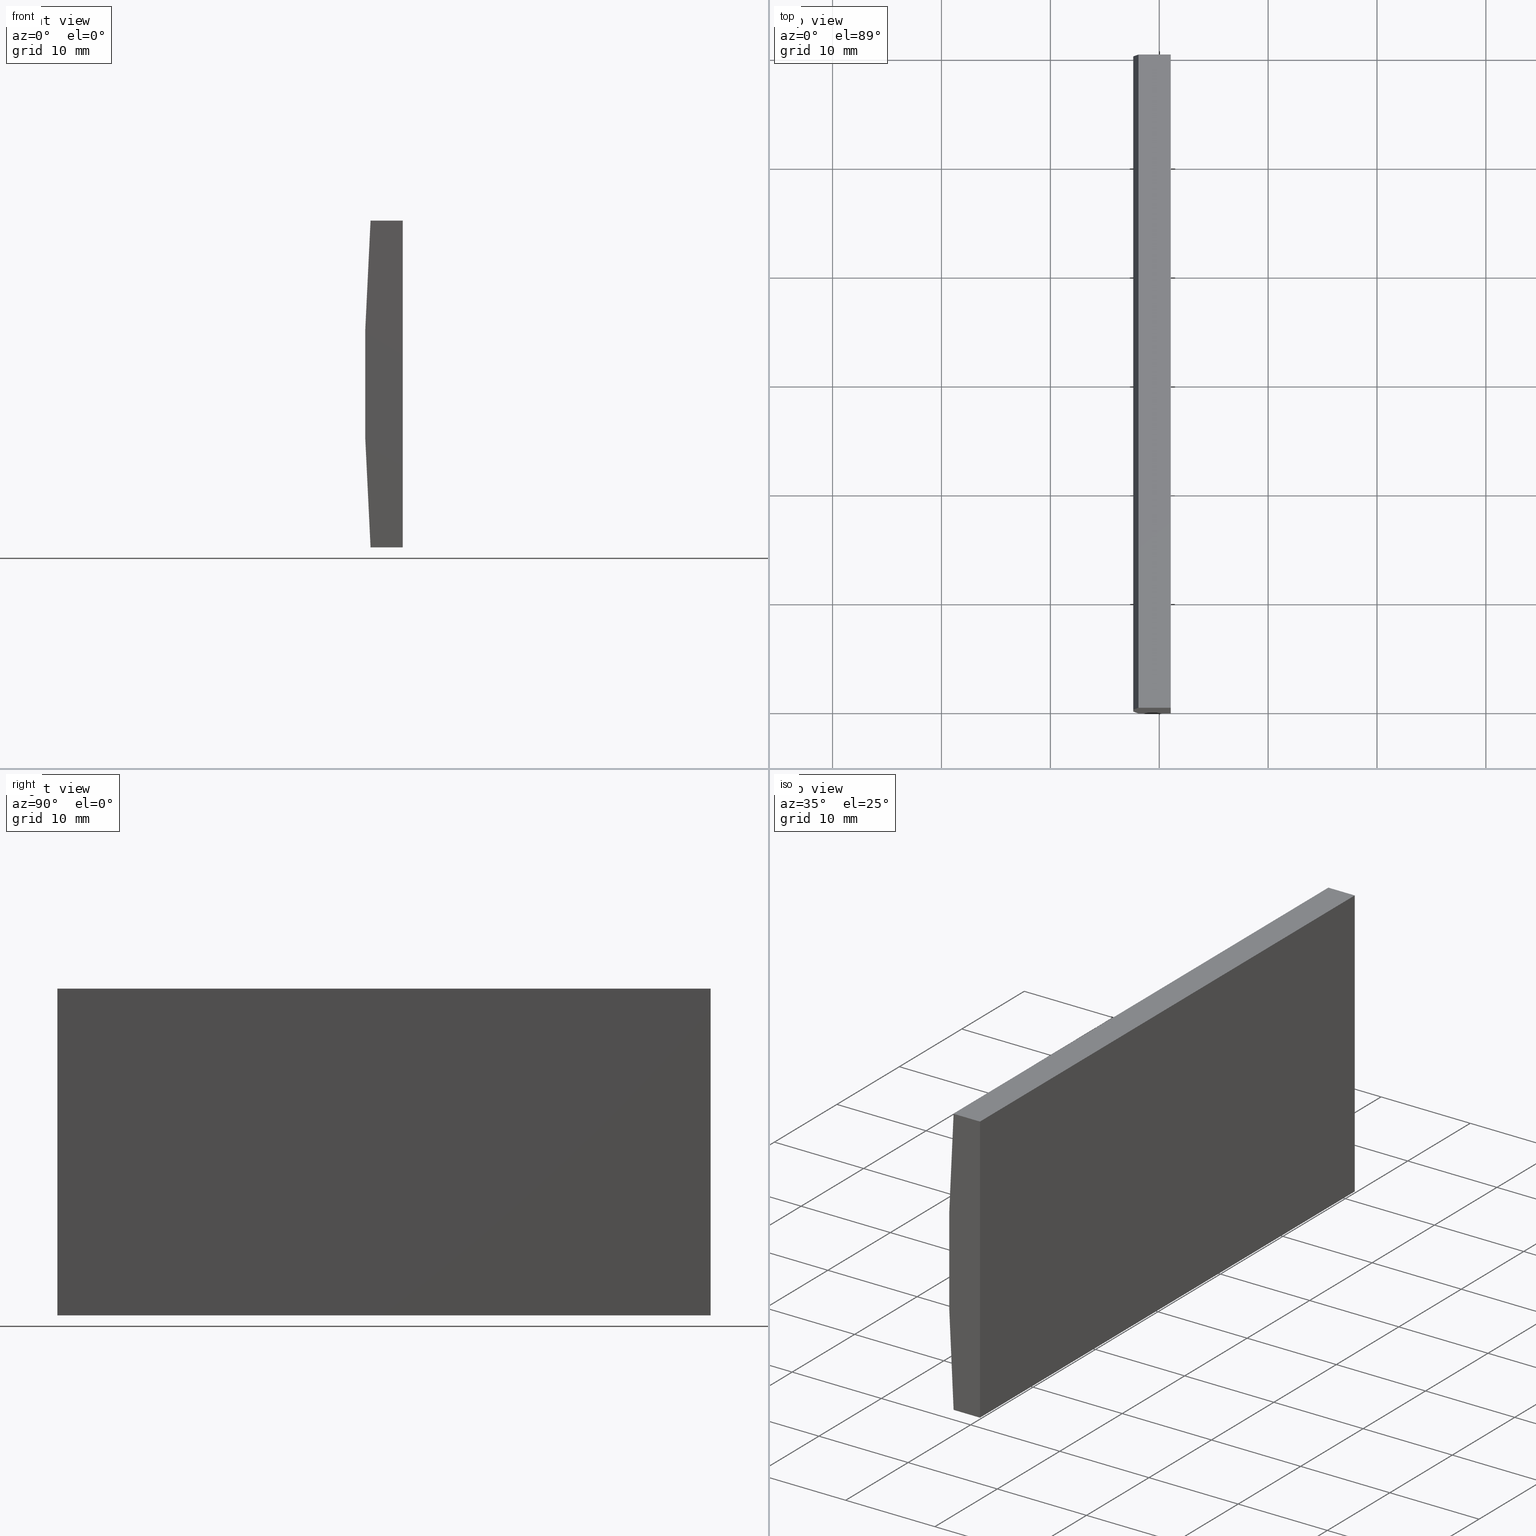
[diagram: canonical four-view strip — front | top / right | iso, engineering-drawing reading convention]
A machine part, canonical four-view strip (front | top / right | iso — engineering-drawing reading convention). The complete STEP part file that produces these views, byte-faithful:
ISO-10303-21;
HEADER;
FILE_DESCRIPTION (( 'STEP AP214' ),
    '1' );
FILE_NAME ('155063.STEP',
    '2019-06-18T08:25:49',
    ( 'user' ),
    ( '΢���й�' ),
    'SwSTEP 2.0',
    'SolidWorks 2016',
    '' );
FILE_SCHEMA (( 'AUTOMOTIVE_DESIGN' ));
ENDSEC;

DATA;
#1 = CARTESIAN_POINT ( 'NONE',  ( -201.9000743854763000, 60.00000000000000000, 15.00000000000000000 ) ) ;
#2 = LINE ( 'NONE', #160, #138 ) ;
#3 = ORIENTED_EDGE ( 'NONE', *, *, #60, .T. ) ;
#4 = PRODUCT_CONTEXT ( 'NONE', #146, 'mechanical' ) ;
#5 = CIRCLE ( 'NONE', #136, 206.8000000000000400 ) ;
#6 = PRESENTATION_LAYER_ASSIGNMENT (  '', '', ( #112 ) ) ;
#7 = ORIENTED_EDGE ( 'NONE', *, *, #151, .F. ) ;
#8 = ORIENTED_EDGE ( 'NONE', *, *, #197, .T. ) ;
#9 = CARTESIAN_POINT ( 'NONE',  ( -198.9447956651487500, 0.0000000000000000000, 15.00000000000000000 ) ) ;
#10 = EDGE_LOOP ( 'NONE', ( #3, #35, #145, #193 ) ) ;
#11 = DIRECTION ( 'NONE',  ( 0.0000000000000000000, 0.0000000000000000000, -1.000000000000000000 ) ) ;
#12 = VECTOR ( 'NONE', #93, 1000.000000000000000 ) ;
#13 = PLANE ( 'NONE',  #204 ) ;
#14 = LINE ( 'NONE', #195, #72 ) ;
#15 = SURFACE_STYLE_USAGE ( .BOTH. , #61 ) ;
#16 = DIRECTION ( 'NONE',  ( 0.0000000000000000000, 0.0000000000000000000, 1.000000000000000000 ) ) ;
#17 = CARTESIAN_POINT ( 'NONE',  ( 4.355204334851265500, 60.00000000000000000, 4.286263797015675000E-017 ) ) ;
#18 = PRODUCT_DEFINITION ( 'δ֪', '', #49, #149 ) ;
#19 = CARTESIAN_POINT ( 'NONE',  ( -201.9000743854763000, 60.00000000000000000, 15.00000000000000000 ) ) ;
#20 = DIRECTION ( 'NONE',  ( 0.0000000000000000000, 0.0000000000000000000, 1.000000000000000000 ) ) ;
#21 = ORIENTED_EDGE ( 'NONE', *, *, #84, .F. ) ;
#22 = VERTEX_POINT ( 'NONE', #185 ) ;
#23 = ORIENTED_EDGE ( 'NONE', *, *, #179, .T. ) ;
#24 = PLANE ( 'NONE',  #34 ) ;
#25 = COLOUR_RGB ( '',1.000000000000000000, 1.000000000000000000, 1.000000000000000000 ) ;
#26 =( GEOMETRIC_REPRESENTATION_CONTEXT ( 3 ) GLOBAL_UNCERTAINTY_ASSIGNED_CONTEXT ( ( #127 ) ) GLOBAL_UNIT_ASSIGNED_CONTEXT ( ( #64, #45, #41 ) ) REPRESENTATION_CONTEXT ( 'NONE', 'WORKASPACE' ) );
#27 = CARTESIAN_POINT ( 'NONE',  ( -201.9000743854763000, 60.00000000000000000, -15.00000000000000000 ) ) ;
#28 = VECTOR ( 'NONE', #182, 1000.000000000000000 ) ;
#29 = CARTESIAN_POINT ( 'NONE',  ( -198.9447956651487500, 60.00000000000000000, -15.00000000000000400 ) ) ;
#30 = ADVANCED_FACE ( 'NONE', ( #128 ), #13, .F. ) ;
#31 = ORIENTED_EDGE ( 'NONE', *, *, #52, .F. ) ;
#32 = VECTOR ( 'NONE', #47, 1000.000000000000000 ) ;
#33 = DIRECTION ( 'NONE',  ( 0.0000000000000000000, 1.000000000000000000, 0.0000000000000000000 ) ) ;
#34 = AXIS2_PLACEMENT_3D ( 'NONE', #17, #110, #147 ) ;
#35 = ORIENTED_EDGE ( 'NONE', *, *, #62, .F. ) ;
#36 = DIRECTION ( 'NONE',  ( -0.0000000000000000000, -0.0000000000000000000, -1.000000000000000000 ) ) ;
#37 = FACE_OUTER_BOUND ( 'NONE', #10, .T. ) ;
#38 = DIRECTION ( 'NONE',  ( 0.0000000000000000000, 1.000000000000000000, 0.0000000000000000000 ) ) ;
#39 = DIRECTION ( 'NONE',  ( 1.173982991211425500E-015, -0.0000000000000000000, 1.000000000000000000 ) ) ;
#40 = ORIENTED_EDGE ( 'NONE', *, *, #98, .T. ) ;
#41 =( NAMED_UNIT ( * ) SI_UNIT ( $, .STERADIAN. ) SOLID_ANGLE_UNIT ( ) );
#42 = ORIENTED_EDGE ( 'NONE', *, *, #201, .F. ) ;
#43 =( NAMED_UNIT ( * ) SI_UNIT ( $, .STERADIAN. ) SOLID_ANGLE_UNIT ( ) );
#44 = MANIFOLD_SOLID_BREP ( '͹̨-����1', #53 ) ;
#45 =( NAMED_UNIT ( * ) PLANE_ANGLE_UNIT ( ) SI_UNIT ( $, .RADIAN. ) );
#46 = SURFACE_SIDE_STYLE ('',( #194 ) ) ;
#47 = DIRECTION ( 'NONE',  ( -0.0000000000000000000, -1.000000000000000000, -0.0000000000000000000 ) ) ;
#48 = ADVANCED_BREP_SHAPE_REPRESENTATION ( '155063', ( #44, #116 ), #55 ) ;
#49 = PRODUCT_DEFINITION_FORMATION_WITH_SPECIFIED_SOURCE ( '�κ�', '', #119, .NOT_KNOWN. ) ;
#50 = CARTESIAN_POINT ( 'NONE',  ( -198.9447956651487500, 60.00000000000000000, -15.00000000000000400 ) ) ;
#51 = PLANE ( 'NONE',  #187 ) ;
#52 = EDGE_CURVE ( 'NONE', #22, #163, #173, .T. ) ;
#53 = CLOSED_SHELL ( 'NONE', ( #78, #30, #91, #180, #148, #196 ) ) ;
#54 = DIRECTION ( 'NONE',  ( 1.000000000000000000, 0.0000000000000000000, 0.0000000000000000000 ) ) ;
#55 =( GEOMETRIC_REPRESENTATION_CONTEXT ( 3 ) GLOBAL_UNCERTAINTY_ASSIGNED_CONTEXT ( ( #113 ) ) GLOBAL_UNIT_ASSIGNED_CONTEXT ( ( #171, #165, #43 ) ) REPRESENTATION_CONTEXT ( 'NONE', 'WORKASPACE' ) );
#56 = VERTEX_POINT ( 'NONE', #157 ) ;
#57 = MECHANICAL_DESIGN_GEOMETRIC_PRESENTATION_REPRESENTATION (  '', ( #112 ), #76 ) ;
#58 = EDGE_CURVE ( 'NONE', #97, #139, #92, .T. ) ;
#59 = COLOUR_RGB ( '',1.000000000000000000, 1.000000000000000000, 1.000000000000000000 ) ;
#60 = EDGE_CURVE ( 'NONE', #118, #56, #5, .T. ) ;
#61 = SURFACE_SIDE_STYLE ('',( #121 ) ) ;
#62 = EDGE_CURVE ( 'NONE', #97, #56, #69, .T. ) ;
#63 = LINE ( 'NONE', #129, #90 ) ;
#64 =( LENGTH_UNIT ( ) NAMED_UNIT ( * ) SI_UNIT ( .MILLI., .METRE. ) );
#65 = DIRECTION ( 'NONE',  ( -0.0000000000000000000, -1.000000000000000000, -0.0000000000000000000 ) ) ;
#66 = DIRECTION ( 'NONE',  ( -1.000000000000000000, 0.0000000000000000000, 0.0000000000000000000 ) ) ;
#67 = DIRECTION ( 'NONE',  ( 0.0000000000000000000, 0.0000000000000000000, 1.000000000000000000 ) ) ;
#68 = CARTESIAN_POINT ( 'NONE',  ( 4.355204334851265500, 0.0000000000000000000, 4.286263797015675000E-017 ) ) ;
#69 = LINE ( 'NONE', #94, #28 ) ;
#70 = FILL_AREA_STYLE ('',( #170 ) ) ;
#71 =( LENGTH_UNIT ( ) NAMED_UNIT ( * ) SI_UNIT ( .MILLI., .METRE. ) );
#72 = VECTOR ( 'NONE', #126, 1000.000000000000000 ) ;
#73 = VECTOR ( 'NONE', #134, 1000.000000000000000 ) ;
#74 = APPLICATION_PROTOCOL_DEFINITION ( 'draft international standard', 'automotive_design', 1998, #146 ) ;
#75 = CARTESIAN_POINT ( 'NONE',  ( -201.9000743854763000, 0.0000000000000000000, -15.00000000000000000 ) ) ;
#76 =( GEOMETRIC_REPRESENTATION_CONTEXT ( 3 ) GLOBAL_UNCERTAINTY_ASSIGNED_CONTEXT ( ( #144 ) ) GLOBAL_UNIT_ASSIGNED_CONTEXT ( ( #71, #115, #109 ) ) REPRESENTATION_CONTEXT ( 'NONE', 'WORKASPACE' ) );
#77 = ORIENTED_EDGE ( 'NONE', *, *, #58, .F. ) ;
#78 = ADVANCED_FACE ( 'NONE', ( #37 ), #108, .T. ) ;
#79 = DIRECTION ( 'NONE',  ( -0.0000000000000000000, -1.000000000000000000, -0.0000000000000000000 ) ) ;
#80 = EDGE_LOOP ( 'NONE', ( #192, #21, #106, #155 ) ) ;
#81 = CARTESIAN_POINT ( 'NONE',  ( -198.9447956651487500, 60.00000000000000000, 15.00000000000000000 ) ) ;
#82 = FILL_AREA_STYLE_COLOUR ( '', #59 ) ;
#83 = AXIS2_PLACEMENT_3D ( 'NONE', #137, #33, #67 ) ;
#84 = EDGE_CURVE ( 'NONE', #163, #118, #63, .T. ) ;
#85 = ORIENTED_EDGE ( 'NONE', *, *, #95, .T. ) ;
#86 = CARTESIAN_POINT ( 'NONE',  ( -198.9447956651487500, 0.0000000000000000000, -15.00000000000000400 ) ) ;
#87 = CARTESIAN_POINT ( 'NONE',  ( -198.9447956651487500, 60.00000000000000000, -15.00000000000000400 ) ) ;
#88 = AXIS2_PLACEMENT_3D ( 'NONE', #68, #191, #130 ) ;
#89 = VERTEX_POINT ( 'NONE', #9 ) ;
#90 = VECTOR ( 'NONE', #164, 1000.000000000000000 ) ;
#91 = ADVANCED_FACE ( 'NONE', ( #132 ), #189, .F. ) ;
#92 = LINE ( 'NONE', #188, #141 ) ;
#93 = DIRECTION ( 'NONE',  ( -0.0000000000000000000, -0.0000000000000000000, -1.000000000000000000 ) ) ;
#94 = CARTESIAN_POINT ( 'NONE',  ( -201.9000743854763000, 60.00000000000000000, 15.00000000000000000 ) ) ;
#95 = EDGE_CURVE ( 'NONE', #139, #22, #198, .T. ) ;
#96 = ORIENTED_EDGE ( 'NONE', *, *, #58, .T. ) ;
#97 = VERTEX_POINT ( 'NONE', #1 ) ;
#98 = EDGE_CURVE ( 'NONE', #89, #163, #203, .T. ) ;
#99 = CARTESIAN_POINT ( 'NONE',  ( -201.9000743854763000, 60.00000000000000000, -15.00000000000000000 ) ) ;
#100 = EDGE_LOOP ( 'NONE', ( #101, #96, #85, #161 ) ) ;
#101 = ORIENTED_EDGE ( 'NONE', *, *, #158, .T. ) ;
#102 = CARTESIAN_POINT ( 'NONE',  ( -198.9447956651487500, 0.0000000000000000000, -15.00000000000000400 ) ) ;
#103 = LINE ( 'NONE', #200, #142 ) ;
#104 = PRESENTATION_STYLE_ASSIGNMENT (( #176 ) ) ;
#105 = FACE_OUTER_BOUND ( 'NONE', #100, .T. ) ;
#106 = ORIENTED_EDGE ( 'NONE', *, *, #98, .F. ) ;
#107 = DIRECTION ( 'NONE',  ( 1.000000000000000000, 0.0000000000000000000, 0.0000000000000000000 ) ) ;
#108 = CYLINDRICAL_SURFACE ( 'NONE', #143, 206.8000000000000400 ) ;
#109 =( NAMED_UNIT ( * ) SI_UNIT ( $, .STERADIAN. ) SOLID_ANGLE_UNIT ( ) );
#110 = DIRECTION ( 'NONE',  ( 0.0000000000000000000, 1.000000000000000000, 0.0000000000000000000 ) ) ;
#111 = FACE_OUTER_BOUND ( 'NONE', #80, .T. ) ;
#112 = STYLED_ITEM ( 'NONE', ( #152 ), #48 ) ;
#113 = UNCERTAINTY_MEASURE_WITH_UNIT (LENGTH_MEASURE( 1.000000000000000100E-005 ), #171, 'distance_accuracy_value', 'NONE');
#114 = ORIENTED_EDGE ( 'NONE', *, *, #84, .T. ) ;
#115 =( NAMED_UNIT ( * ) PLANE_ANGLE_UNIT ( ) SI_UNIT ( $, .RADIAN. ) );
#116 = AXIS2_PLACEMENT_3D ( 'NONE', #190, #16, #107 ) ;
#117 = ORIENTED_EDGE ( 'NONE', *, *, #52, .T. ) ;
#118 = VERTEX_POINT ( 'NONE', #75 ) ;
#119 = PRODUCT ( '155063', '155063', '', ( #4 ) ) ;
#120 = PRODUCT_RELATED_PRODUCT_CATEGORY ( 'part', '', ( #119 ) ) ;
#121 = SURFACE_STYLE_FILL_AREA ( #70 ) ;
#122 = CARTESIAN_POINT ( 'NONE',  ( -201.9000743854763000, 0.0000000000000000000, 15.00000000000000000 ) ) ;
#123 = LINE ( 'NONE', #122, #73 ) ;
#124 = STYLED_ITEM ( 'NONE', ( #104 ), #44 ) ;
#125 = PLANE ( 'NONE',  #88 ) ;
#126 = DIRECTION ( 'NONE',  ( -0.0000000000000000000, -1.000000000000000000, -0.0000000000000000000 ) ) ;
#127 = UNCERTAINTY_MEASURE_WITH_UNIT (LENGTH_MEASURE( 1.000000000000000100E-005 ), #64, 'distance_accuracy_value', 'NONE');
#128 = FACE_OUTER_BOUND ( 'NONE', #153, .T. ) ;
#129 = CARTESIAN_POINT ( 'NONE',  ( -201.9000743854763000, 0.0000000000000000000, -15.00000000000000000 ) ) ;
#130 = DIRECTION ( 'NONE',  ( 0.0000000000000000000, -0.0000000000000000000, 1.000000000000000000 ) ) ;
#131 = FACE_OUTER_BOUND ( 'NONE', #159, .T. ) ;
#132 = FACE_OUTER_BOUND ( 'NONE', #156, .T. ) ;
#133 = VERTEX_POINT ( 'NONE', #27 ) ;
#134 = DIRECTION ( 'NONE',  ( 1.000000000000000000, 0.0000000000000000000, 0.0000000000000000000 ) ) ;
#135 = FILL_AREA_STYLE ('',( #82 ) ) ;
#136 = AXIS2_PLACEMENT_3D ( 'NONE', #177, #38, #181 ) ;
#137 = CARTESIAN_POINT ( 'NONE',  ( 4.355204334851265500, 60.00000000000000000, 4.286263797015675000E-017 ) ) ;
#138 = VECTOR ( 'NONE', #79, 1000.000000000000000 ) ;
#139 = VERTEX_POINT ( 'NONE', #81 ) ;
#140 = ORIENTED_EDGE ( 'NONE', *, *, #62, .T. ) ;
#141 = VECTOR ( 'NONE', #54, 1000.000000000000000 ) ;
#142 = VECTOR ( 'NONE', #150, 1000.000000000000000 ) ;
#143 = AXIS2_PLACEMENT_3D ( 'NONE', #166, #65, #11 ) ;
#144 = UNCERTAINTY_MEASURE_WITH_UNIT (LENGTH_MEASURE( 1.000000000000000100E-005 ), #71, 'distance_accuracy_value', 'NONE');
#145 = ORIENTED_EDGE ( 'NONE', *, *, #158, .F. ) ;
#146 = APPLICATION_CONTEXT ( 'automotive_design' ) ;
#147 = DIRECTION ( 'NONE',  ( 0.0000000000000000000, -0.0000000000000000000, 1.000000000000000000 ) ) ;
#148 = ADVANCED_FACE ( 'NONE', ( #105 ), #24, .T. ) ;
#149 = PRODUCT_DEFINITION_CONTEXT ( 'detailed design', #202, 'design' ) ;
#150 = DIRECTION ( 'NONE',  ( -1.000000000000000000, -0.0000000000000000000, 1.173982991211425300E-015 ) ) ;
#151 = EDGE_CURVE ( 'NONE', #133, #118, #14, .T. ) ;
#152 = PRESENTATION_STYLE_ASSIGNMENT (( #15 ) ) ;
#153 = EDGE_LOOP ( 'NONE', ( #23, #175, #77, #140 ) ) ;
#154 = PRESENTATION_LAYER_ASSIGNMENT (  '', '', ( #124 ) ) ;
#155 = ORIENTED_EDGE ( 'NONE', *, *, #179, .F. ) ;
#156 = EDGE_LOOP ( 'NONE', ( #40, #31, #178, #8 ) ) ;
#157 = CARTESIAN_POINT ( 'NONE',  ( -201.9000743854763000, 0.0000000000000000000, 15.00000000000000000 ) ) ;
#158 = EDGE_CURVE ( 'NONE', #133, #97, #183, .T. ) ;
#159 = EDGE_LOOP ( 'NONE', ( #114, #7, #42, #117 ) ) ;
#160 = CARTESIAN_POINT ( 'NONE',  ( -198.9447956651487500, 60.00000000000000000, 15.00000000000000000 ) ) ;
#161 = ORIENTED_EDGE ( 'NONE', *, *, #201, .T. ) ;
#162 = DIRECTION ( 'NONE',  ( -1.000000000000000000, 0.0000000000000000000, -0.0000000000000000000 ) ) ;
#163 = VERTEX_POINT ( 'NONE', #86 ) ;
#164 = DIRECTION ( 'NONE',  ( -1.000000000000000000, -0.0000000000000000000, 1.173982991211425300E-015 ) ) ;
#165 =( NAMED_UNIT ( * ) PLANE_ANGLE_UNIT ( ) SI_UNIT ( $, .RADIAN. ) );
#166 = CARTESIAN_POINT ( 'NONE',  ( 4.355204334851265500, 60.00000000000000000, 4.286263797015675000E-017 ) ) ;
#167 = VECTOR ( 'NONE', #36, 1000.000000000000000 ) ;
#168 = SHAPE_DEFINITION_REPRESENTATION ( #184, #48 ) ;
#169 = AXIS2_PLACEMENT_3D ( 'NONE', #87, #66, #20 ) ;
#170 = FILL_AREA_STYLE_COLOUR ( '', #25 ) ;
#171 =( LENGTH_UNIT ( ) NAMED_UNIT ( * ) SI_UNIT ( .MILLI., .METRE. ) );
#172 = MECHANICAL_DESIGN_GEOMETRIC_PRESENTATION_REPRESENTATION (  '', ( #124 ), #26 ) ;
#173 = LINE ( 'NONE', #50, #32 ) ;
#174 = APPLICATION_PROTOCOL_DEFINITION ( 'draft international standard', 'automotive_design', 1998, #202 ) ;
#175 = ORIENTED_EDGE ( 'NONE', *, *, #197, .F. ) ;
#176 = SURFACE_STYLE_USAGE ( .BOTH. , #46 ) ;
#177 = CARTESIAN_POINT ( 'NONE',  ( 4.355204334851265500, 0.0000000000000000000, 4.286263797015675000E-017 ) ) ;
#178 = ORIENTED_EDGE ( 'NONE', *, *, #95, .F. ) ;
#179 = EDGE_CURVE ( 'NONE', #56, #89, #123, .T. ) ;
#180 = ADVANCED_FACE ( 'NONE', ( #131 ), #51, .F. ) ;
#181 = DIRECTION ( 'NONE',  ( 0.0000000000000000000, 0.0000000000000000000, 1.000000000000000000 ) ) ;
#182 = DIRECTION ( 'NONE',  ( -0.0000000000000000000, -1.000000000000000000, -0.0000000000000000000 ) ) ;
#183 = CIRCLE ( 'NONE', #83, 206.8000000000000400 ) ;
#184 = PRODUCT_DEFINITION_SHAPE ( 'NONE', 'NONE',  #18 ) ;
#185 = CARTESIAN_POINT ( 'NONE',  ( -198.9447956651487500, 60.00000000000000000, -15.00000000000000400 ) ) ;
#186 = DIRECTION ( 'NONE',  ( 1.000000000000000000, 0.0000000000000000000, -1.173982991211425500E-015 ) ) ;
#187 = AXIS2_PLACEMENT_3D ( 'NONE', #99, #39, #186 ) ;
#188 = CARTESIAN_POINT ( 'NONE',  ( -201.9000743854763000, 60.00000000000000000, 15.00000000000000000 ) ) ;
#189 = PLANE ( 'NONE',  #169 ) ;
#190 = CARTESIAN_POINT ( 'NONE',  ( 0.0000000000000000000, 0.0000000000000000000, 0.0000000000000000000 ) ) ;
#191 = DIRECTION ( 'NONE',  ( 0.0000000000000000000, 1.000000000000000000, 0.0000000000000000000 ) ) ;
#192 = ORIENTED_EDGE ( 'NONE', *, *, #60, .F. ) ;
#193 = ORIENTED_EDGE ( 'NONE', *, *, #151, .T. ) ;
#194 = SURFACE_STYLE_FILL_AREA ( #135 ) ;
#195 = CARTESIAN_POINT ( 'NONE',  ( -201.9000743854763000, 60.00000000000000000, -15.00000000000000000 ) ) ;
#196 = ADVANCED_FACE ( 'NONE', ( #111 ), #125, .F. ) ;
#197 = EDGE_CURVE ( 'NONE', #139, #89, #2, .T. ) ;
#198 = LINE ( 'NONE', #29, #167 ) ;
#199 = DIRECTION ( 'NONE',  ( 0.0000000000000000000, 0.0000000000000000000, -1.000000000000000000 ) ) ;
#200 = CARTESIAN_POINT ( 'NONE',  ( -201.9000743854763000, 60.00000000000000000, -15.00000000000000000 ) ) ;
#201 = EDGE_CURVE ( 'NONE', #22, #133, #103, .T. ) ;
#202 = APPLICATION_CONTEXT ( 'automotive_design' ) ;
#203 = LINE ( 'NONE', #102, #12 ) ;
#204 = AXIS2_PLACEMENT_3D ( 'NONE', #19, #199, #162 ) ;
ENDSEC;
END-ISO-10303-21;
